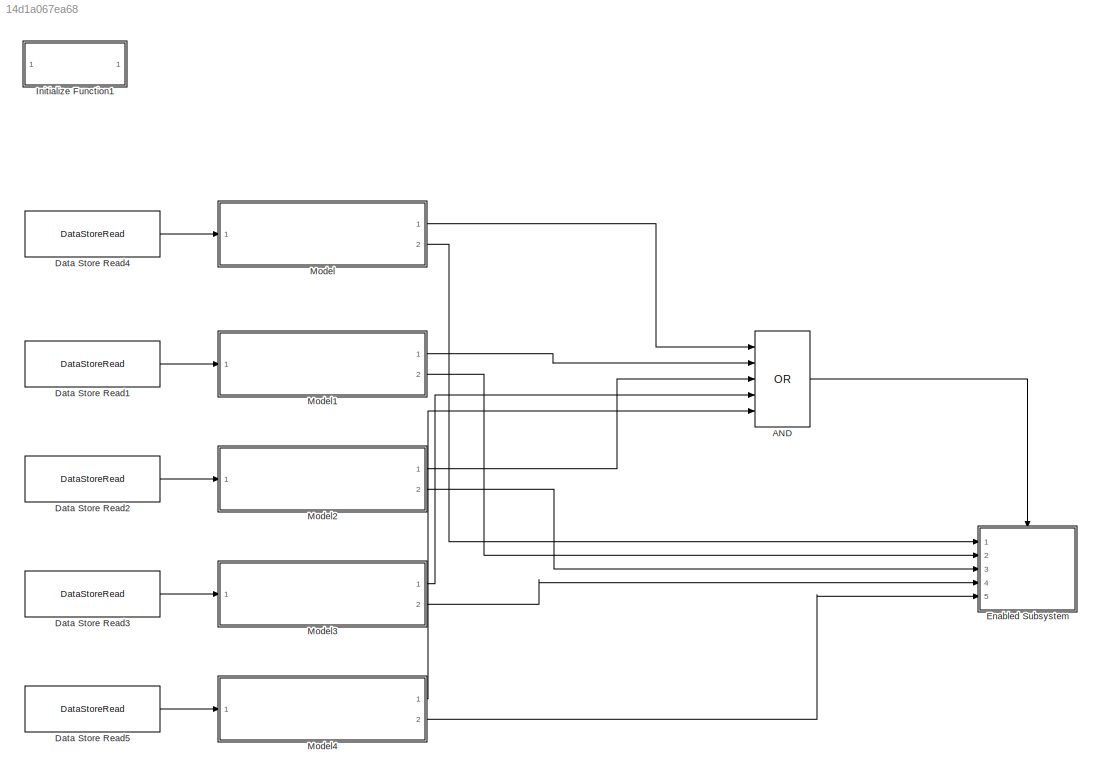
MODEL slx_14d1a067ea68
KIND model
BLOCK [Logic] AND
  AllPortsSameDT = off
  Inputs = 5
  Operator = OR
  OutDataTypeStr = boolean
  Ports = [5, 1]
BLOCK [DataStoreRead] Data Store Read1
  DataStoreElements = sys_regs.holdings(102)
  DataStoreName = sys_regs
  IndexOptions = Index vector (dialog)
  Indices = 1
  OutputSizes = 1
  Ports = [0, 1]
BLOCK [DataStoreRead] Data Store Read2
  DataStoreElements = sys_regs.holdings(103)
  DataStoreName = sys_regs
  IndexOptions = Index vector (dialog)
  Indices = 1
  OutputSizes = 1
  Ports = [0, 1]
BLOCK [DataStoreRead] Data Store Read3
  DataStoreElements = sys_regs.holdings(104)
  DataStoreName = sys_regs
  IndexOptions = Index vector (dialog)
  Indices = 1
  OutputSizes = 1
  Ports = [0, 1]
BLOCK [DataStoreRead] Data Store Read4
  DataStoreElements = sys_regs.holdings(101)
  DataStoreName = sys_regs
  IndexOptions = Index vector (dialog)
  Indices = 1
  OutputSizes = 1
  Ports = [0, 1]
BLOCK [DataStoreRead] Data Store Read5
  DataStoreElements = sys_regs.holdings(105)
  DataStoreName = sys_regs
  IndexOptions = Index vector (dialog)
  Indices = 1
  OutputSizes = 1
  Ports = [0, 1]
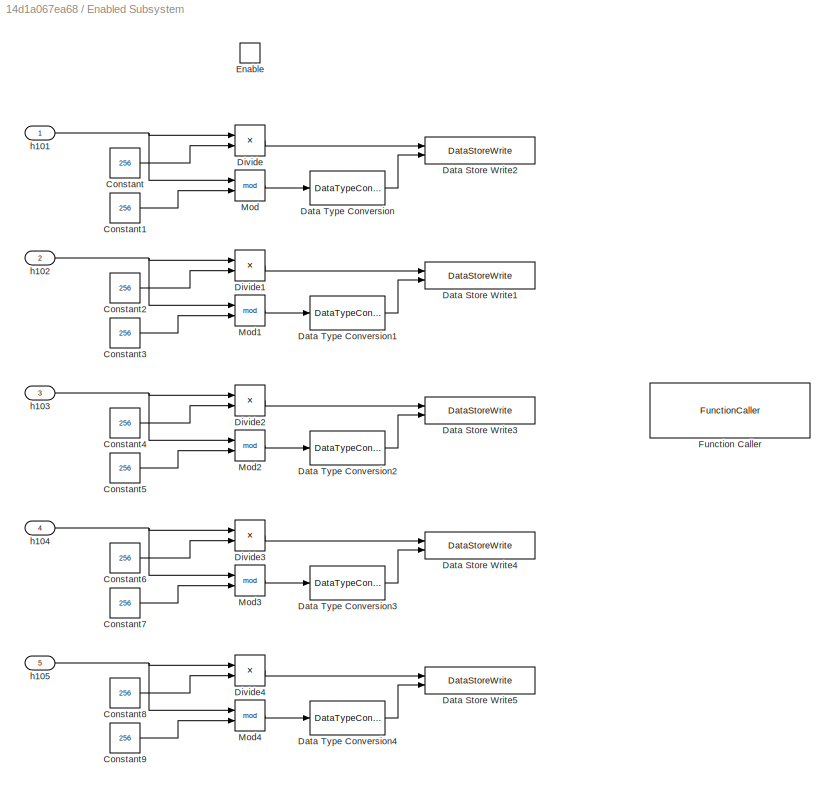
BLOCK [SubSystem] Enabled Subsystem
  Ports = [5, 0, 1]
  RequestExecContextInheritance = off
  TreatAsAtomicUnit = on
BLOCK [Constant] Enabled Subsystem/Constant
  Value = 256
BLOCK [Constant] Enabled Subsystem/Constant1
  OutDataTypeStr = int16
  Value = 256
BLOCK [Constant] Enabled Subsystem/Constant2
  Value = 256
BLOCK [Constant] Enabled Subsystem/Constant3
  OutDataTypeStr = int16
  Value = 256
BLOCK [Constant] Enabled Subsystem/Constant4
  Value = 256
BLOCK [Constant] Enabled Subsystem/Constant5
  OutDataTypeStr = int16
  Value = 256
BLOCK [Constant] Enabled Subsystem/Constant6
  Value = 256
BLOCK [Constant] Enabled Subsystem/Constant7
  OutDataTypeStr = int16
  Value = 256
BLOCK [Constant] Enabled Subsystem/Constant8
  Value = 256
BLOCK [Constant] Enabled Subsystem/Constant9
  OutDataTypeStr = int16
  Value = 256
BLOCK [DataStoreWrite] Enabled Subsystem/Data Store Write1
  DataStoreElements = ee_ram(3)#ee_ram(4)
  DataStoreName = ee_ram
  IndexOptions = Index vector (dialog)
  Indices = 1
  OutputSizes = 1
  Ports = [2]
BLOCK [DataStoreWrite] Enabled Subsystem/Data Store Write2
  DataStoreElements = ee_ram(1)#ee_ram(2)
  DataStoreName = ee_ram
  IndexOptions = Index vector (dialog)
  Indices = 1
  OutputSizes = 1
  Ports = [2]
BLOCK [DataStoreWrite] Enabled Subsystem/Data Store Write3
  DataStoreElements = ee_ram(5)#ee_ram(6)
  DataStoreName = ee_ram
  IndexOptions = Index vector (dialog)
  Indices = 1
  OutputSizes = 1
  Ports = [2]
BLOCK [DataStoreWrite] Enabled Subsystem/Data Store Write4
  DataStoreElements = ee_ram(7)#ee_ram(8)
  DataStoreName = ee_ram
  IndexOptions = Index vector (dialog)
  Indices = 1
  OutputSizes = 1
  Ports = [2]
BLOCK [DataStoreWrite] Enabled Subsystem/Data Store Write5
  DataStoreElements = ee_ram(9)#ee_ram(10)
  DataStoreName = ee_ram
  IndexOptions = Index vector (dialog)
  Indices = 1
  OutputSizes = 1
  Ports = [2]
BLOCK [DataTypeConversion] Enabled Subsystem/Data Type Conversion
  OutDataTypeStr = uint8
  RndMeth = Floor
  SaturateOnIntegerOverflow = off
BLOCK [DataTypeConversion] Enabled Subsystem/Data Type Conversion1
  OutDataTypeStr = uint8
  RndMeth = Floor
  SaturateOnIntegerOverflow = off
BLOCK [DataTypeConversion] Enabled Subsystem/Data Type Conversion2
  OutDataTypeStr = uint8
  RndMeth = Floor
  SaturateOnIntegerOverflow = off
BLOCK [DataTypeConversion] Enabled Subsystem/Data Type Conversion3
  OutDataTypeStr = uint8
  RndMeth = Floor
  SaturateOnIntegerOverflow = off
BLOCK [DataTypeConversion] Enabled Subsystem/Data Type Conversion4
  OutDataTypeStr = uint8
  RndMeth = Floor
  SaturateOnIntegerOverflow = off
BLOCK [Product] Enabled Subsystem/Divide
  Inputs = */
  OutDataTypeStr = uint8
  Ports = [2, 1]
BLOCK [Product] Enabled Subsystem/Divide1
  Inputs = */
  OutDataTypeStr = uint8
  Ports = [2, 1]
BLOCK [Product] Enabled Subsystem/Divide2
  Inputs = */
  OutDataTypeStr = uint8
  Ports = [2, 1]
BLOCK [Product] Enabled Subsystem/Divide3
  Inputs = */
  OutDataTypeStr = uint8
  Ports = [2, 1]
BLOCK [Product] Enabled Subsystem/Divide4
  Inputs = */
  OutDataTypeStr = uint8
  Ports = [2, 1]
BLOCK [EnablePort] Enabled Subsystem/Enable
  Ports = []
BLOCK [FunctionCaller] Enabled Subsystem/Function Caller
  FunctionPrototype = ee_save_params()
  Ports = []
BLOCK [Math] Enabled Subsystem/Mod
  Operator = mod
  OutputSignalType = real
  Ports = [2, 1]
BLOCK [Math] Enabled Subsystem/Mod1
  Operator = mod
  OutputSignalType = real
  Ports = [2, 1]
BLOCK [Math] Enabled Subsystem/Mod2
  Operator = mod
  OutputSignalType = real
  Ports = [2, 1]
BLOCK [Math] Enabled Subsystem/Mod3
  Operator = mod
  OutputSignalType = real
  Ports = [2, 1]
BLOCK [Math] Enabled Subsystem/Mod4
  Operator = mod
  OutputSignalType = real
  Ports = [2, 1]
BLOCK [Inport] Enabled Subsystem/h101
BLOCK [Inport] Enabled Subsystem/h102
  Port = 2
BLOCK [Inport] Enabled Subsystem/h103
  Port = 3
BLOCK [Inport] Enabled Subsystem/h104
  Port = 4
BLOCK [Inport] Enabled Subsystem/h105
  Port = 5
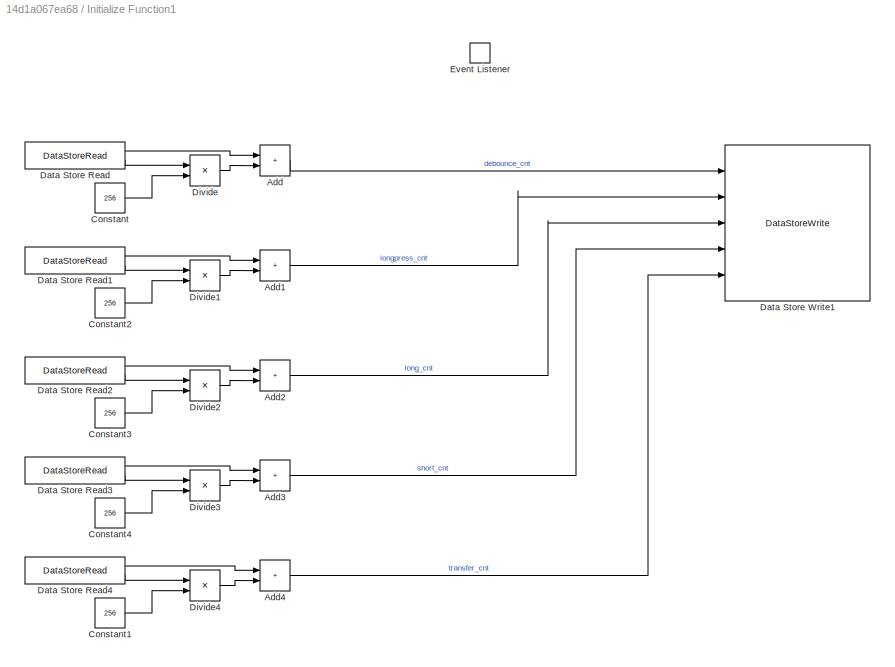
BLOCK [SubSystem] Initialize Function1
  Ports = []
  RequestExecContextInheritance = off
  TreatAsAtomicUnit = on
BLOCK [Sum] Initialize Function1/Add
  AccumDataTypeStr = int16
  IconShape = rectangular
  Ports = [2, 1]
BLOCK [Sum] Initialize Function1/Add1
  AccumDataTypeStr = int16
  IconShape = rectangular
  Ports = [2, 1]
BLOCK [Sum] Initialize Function1/Add2
  AccumDataTypeStr = int16
  IconShape = rectangular
  Ports = [2, 1]
BLOCK [Sum] Initialize Function1/Add3
  AccumDataTypeStr = int16
  IconShape = rectangular
  Ports = [2, 1]
BLOCK [Sum] Initialize Function1/Add4
  AccumDataTypeStr = int16
  IconShape = rectangular
  Ports = [2, 1]
BLOCK [Constant] Initialize Function1/Constant
  OutDataTypeStr = int16
  Value = 256
BLOCK [Constant] Initialize Function1/Constant1
  OutDataTypeStr = int16
  Value = 256
BLOCK [Constant] Initialize Function1/Constant2
  OutDataTypeStr = int16
  Value = 256
BLOCK [Constant] Initialize Function1/Constant3
  OutDataTypeStr = int16
  Value = 256
BLOCK [Constant] Initialize Function1/Constant4
  OutDataTypeStr = int16
  Value = 256
BLOCK [DataStoreRead] Initialize Function1/Data Store Read
  DataStoreElements = ee_ram(2)#ee_ram(1)
  DataStoreName = ee_ram
  IndexOptions = Index vector (dialog)
  Indices = 1
  OutputSizes = 1
  Ports = [0, 2]
BLOCK [DataStoreRead] Initialize Function1/Data Store Read1
  DataStoreElements = ee_ram(4)#ee_ram(3)
  DataStoreName = ee_ram
  IndexOptions = Index vector (dialog)
  Indices = 1
  OutputSizes = 1
  Ports = [0, 2]
BLOCK [DataStoreRead] Initialize Function1/Data Store Read2
  DataStoreElements = ee_ram(6)#ee_ram(5)
  DataStoreName = ee_ram
  IndexOptions = Index vector (dialog)
  Indices = 1
  OutputSizes = 1
  Ports = [0, 2]
BLOCK [DataStoreRead] Initialize Function1/Data Store Read3
  DataStoreElements = ee_ram(8)#ee_ram(7)
  DataStoreName = ee_ram
  IndexOptions = Index vector (dialog)
  Indices = 1
  OutputSizes = 1
  Ports = [0, 2]
BLOCK [DataStoreRead] Initialize Function1/Data Store Read4
  DataStoreElements = ee_ram(10)#ee_ram(9)
  DataStoreName = ee_ram
  IndexOptions = Index vector (dialog)
  Indices = 1
  OutputSizes = 1
  Ports = [0, 2]
BLOCK [DataStoreWrite] Initialize Function1/Data Store Write1
  DataStoreElements = sys_regs.holdings(101)#sys_regs.holdings(102)#sys_regs.holdings(103)#sys_regs.holdings(104)#sys_regs.holdings(105)
  DataStoreName = sys_regs
  IndexOptions = Index vector (dialog)
  Indices = 1
  OutputSizes = 1
  Ports = [5]
BLOCK [Product] Initialize Function1/Divide
  Inputs = **
  OutDataTypeStr = int16
  Ports = [2, 1]
BLOCK [Product] Initialize Function1/Divide1
  Inputs = **
  OutDataTypeStr = int16
  Ports = [2, 1]
BLOCK [Product] Initialize Function1/Divide2
  Inputs = **
  OutDataTypeStr = int16
  Ports = [2, 1]
BLOCK [Product] Initialize Function1/Divide3
  Inputs = **
  OutDataTypeStr = int16
  Ports = [2, 1]
BLOCK [Product] Initialize Function1/Divide4
  Inputs = **
  OutDataTypeStr = int16
  Ports = [2, 1]
BLOCK [EventListener] Initialize Function1/Event Listener
  DisableCoverage = on
  EventName = reset
BLOCK [ModelReference] Model
  ModelNameDialog = change_watcher.slx
  ModelReferenceVersion = 2.1
  Ports = [1, 2]
BLOCK [ModelReference] Model1
  ModelNameDialog = change_watcher.slx
  ModelReferenceVersion = 2.1
  Ports = [1, 2]
BLOCK [ModelReference] Model2
  ModelNameDialog = change_watcher.slx
  ModelReferenceVersion = 2.1
  Ports = [1, 2]
BLOCK [ModelReference] Model3
  ModelNameDialog = change_watcher.slx
  ModelReferenceVersion = 2.1
  Ports = [1, 2]
BLOCK [ModelReference] Model4
  ModelNameDialog = change_watcher.slx
  ModelReferenceVersion = 2.1
  Ports = [1, 2]
LINE AND:1 -> Enabled Subsystem:enable
LINE Data Store Read1:1 -> Model1:1
LINE Data Store Read2:1 -> Model2:1
LINE Data Store Read3:1 -> Model3:1
LINE Data Store Read4:1 -> Model:1
LINE Data Store Read5:1 -> Model4:1
LINE Enabled Subsystem/Constant1:1 -> Enabled Subsystem/Mod:2
LINE Enabled Subsystem/Constant2:1 -> Enabled Subsystem/Divide1:2
LINE Enabled Subsystem/Constant3:1 -> Enabled Subsystem/Mod1:2
LINE Enabled Subsystem/Constant4:1 -> Enabled Subsystem/Divide2:2
LINE Enabled Subsystem/Constant5:1 -> Enabled Subsystem/Mod2:2
LINE Enabled Subsystem/Constant6:1 -> Enabled Subsystem/Divide3:2
LINE Enabled Subsystem/Constant7:1 -> Enabled Subsystem/Mod3:2
LINE Enabled Subsystem/Constant8:1 -> Enabled Subsystem/Divide4:2
LINE Enabled Subsystem/Constant9:1 -> Enabled Subsystem/Mod4:2
LINE Enabled Subsystem/Constant:1 -> Enabled Subsystem/Divide:2
LINE Enabled Subsystem/Data Type Conversion1:1 -> Enabled Subsystem/Data Store Write1:2
LINE Enabled Subsystem/Data Type Conversion2:1 -> Enabled Subsystem/Data Store Write3:2
LINE Enabled Subsystem/Data Type Conversion3:1 -> Enabled Subsystem/Data Store Write4:2
LINE Enabled Subsystem/Data Type Conversion4:1 -> Enabled Subsystem/Data Store Write5:2
LINE Enabled Subsystem/Data Type Conversion:1 -> Enabled Subsystem/Data Store Write2:2
LINE Enabled Subsystem/Divide1:1 -> Enabled Subsystem/Data Store Write1:1
LINE Enabled Subsystem/Divide2:1 -> Enabled Subsystem/Data Store Write3:1
LINE Enabled Subsystem/Divide3:1 -> Enabled Subsystem/Data Store Write4:1
LINE Enabled Subsystem/Divide4:1 -> Enabled Subsystem/Data Store Write5:1
LINE Enabled Subsystem/Divide:1 -> Enabled Subsystem/Data Store Write2:1
LINE Enabled Subsystem/Mod1:1 -> Enabled Subsystem/Data Type Conversion1:1
LINE Enabled Subsystem/Mod2:1 -> Enabled Subsystem/Data Type Conversion2:1
LINE Enabled Subsystem/Mod3:1 -> Enabled Subsystem/Data Type Conversion3:1
LINE Enabled Subsystem/Mod4:1 -> Enabled Subsystem/Data Type Conversion4:1
LINE Enabled Subsystem/Mod:1 -> Enabled Subsystem/Data Type Conversion:1
NET Enabled Subsystem/h101:1 -> Enabled Subsystem/Divide:1, Enabled Subsystem/Mod:1
NET Enabled Subsystem/h102:1 -> Enabled Subsystem/Divide1:1, Enabled Subsystem/Mod1:1
NET Enabled Subsystem/h103:1 -> Enabled Subsystem/Divide2:1, Enabled Subsystem/Mod2:1
NET Enabled Subsystem/h104:1 -> Enabled Subsystem/Divide3:1, Enabled Subsystem/Mod3:1
NET Enabled Subsystem/h105:1 -> Enabled Subsystem/Divide4:1, Enabled Subsystem/Mod4:1
LINE Initialize Function1/Add1:1 -> Initialize Function1/Data Store Write1:2
LINE Initialize Function1/Add2:1 -> Initialize Function1/Data Store Write1:3
LINE Initialize Function1/Add3:1 -> Initialize Function1/Data Store Write1:4
LINE Initialize Function1/Add4:1 -> Initialize Function1/Data Store Write1:5
LINE Initialize Function1/Add:1 -> Initialize Function1/Data Store Write1:1
LINE Initialize Function1/Constant1:1 -> Initialize Function1/Divide4:2
LINE Initialize Function1/Constant2:1 -> Initialize Function1/Divide1:2
LINE Initialize Function1/Constant3:1 -> Initialize Function1/Divide2:2
LINE Initialize Function1/Constant4:1 -> Initialize Function1/Divide3:2
LINE Initialize Function1/Constant:1 -> Initialize Function1/Divide:2
LINE Initialize Function1/Data Store Read1:1 -> Initialize Function1/Add1:1
LINE Initialize Function1/Data Store Read1:2 -> Initialize Function1/Divide1:1
LINE Initialize Function1/Data Store Read2:1 -> Initialize Function1/Add2:1
LINE Initialize Function1/Data Store Read2:2 -> Initialize Function1/Divide2:1
LINE Initialize Function1/Data Store Read3:1 -> Initialize Function1/Add3:1
LINE Initialize Function1/Data Store Read3:2 -> Initialize Function1/Divide3:1
LINE Initialize Function1/Data Store Read4:1 -> Initialize Function1/Add4:1
LINE Initialize Function1/Data Store Read4:2 -> Initialize Function1/Divide4:1
LINE Initialize Function1/Data Store Read:1 -> Initialize Function1/Add:1
LINE Initialize Function1/Data Store Read:2 -> Initialize Function1/Divide:1
LINE Initialize Function1/Divide1:1 -> Initialize Function1/Add1:2
LINE Initialize Function1/Divide2:1 -> Initialize Function1/Add2:2
LINE Initialize Function1/Divide3:1 -> Initialize Function1/Add3:2
LINE Initialize Function1/Divide4:1 -> Initialize Function1/Add4:2
LINE Initialize Function1/Divide:1 -> Initialize Function1/Add:2
LINE Model1:1 -> AND:2
LINE Model1:2 -> Enabled Subsystem:2
LINE Model2:1 -> AND:3
LINE Model2:2 -> Enabled Subsystem:3
LINE Model3:1 -> AND:4
LINE Model3:2 -> Enabled Subsystem:4
LINE Model4:1 -> AND:5
LINE Model4:2 -> Enabled Subsystem:5
LINE Model:1 -> AND:1
LINE Model:2 -> Enabled Subsystem:1
note: NET lines group one-source signal fan-out (src -> all destinations, sorted); 1:1 wires keep LINE
